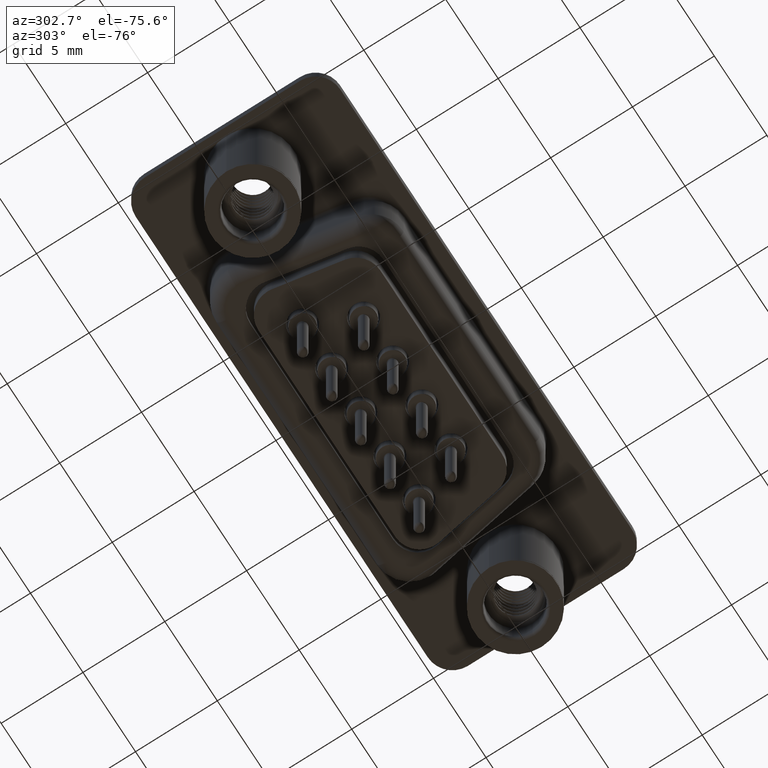
[diagram: clean part render]
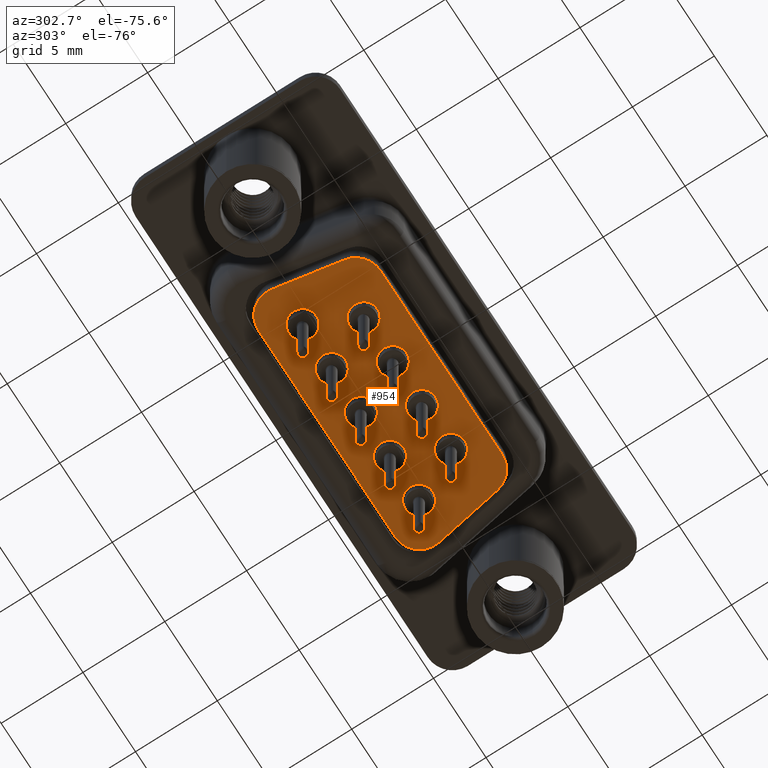
[diagram: same view with one face highlighted and labeled with its STEP entity id]
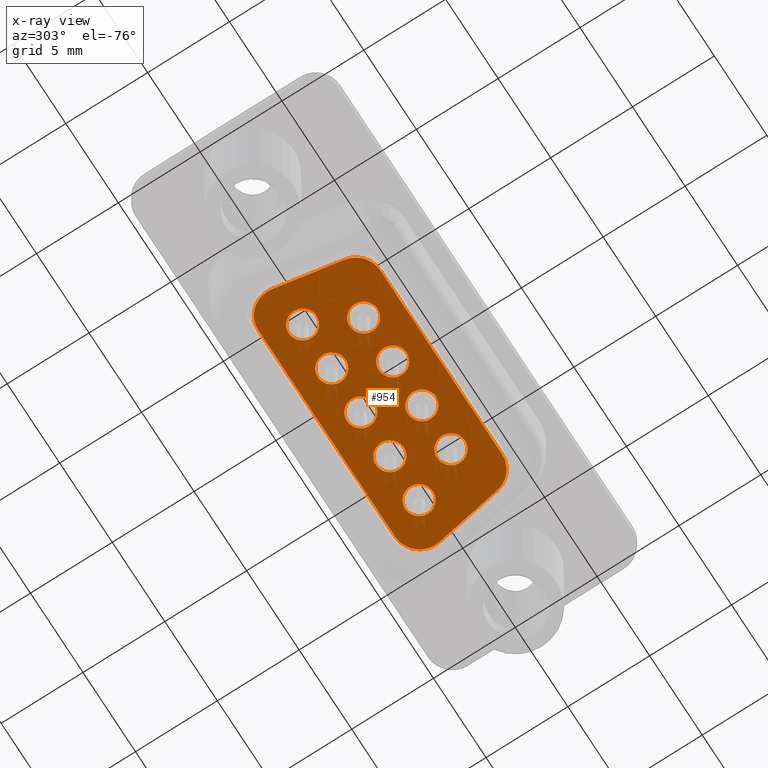
[diagram: x-ray of the same camera — body ghosted, the highlighted face saturated]
A machine part, auxiliary view. The second image highlights one B-rep face of the part: STEP entity #954.
The next image is the same camera in x-ray: the body ghosted, the highlighted face saturated — about 5% of this face is hidden behind the body in this view.
In plain terms, the highlighted planar face has unit normal (0, 0, 1).
Its self-contained STEP definition (entity closure, byte-faithful):
#44 = CARTESIAN_POINT ( 'NONE',  ( 6.960000000000000853, 1.415000000000005143, -5.500000000000000000 ) ) ;
#63 = DIRECTION ( 'NONE',  ( 1.000000000000000000, 0.0000000000000000000, 0.0000000000000000000 ) ) ;
#104 = ORIENTED_EDGE ( 'NONE', *, *, #1727, .T. ) ;
#110 = CARTESIAN_POINT ( 'NONE',  ( 13.03500000000000192, -1.424999999999994493, -5.500000000000000000 ) ) ;
#142 = CARTESIAN_POINT ( 'NONE',  ( 7.495000000000001883, -1.424999999999994493, -5.500000000000000000 ) ) ;
#145 = AXIS2_PLACEMENT_3D ( 'NONE', #12291, #7373, #1005 ) ;
#174 = DIRECTION ( 'NONE',  ( 0.0000000000000000000, -0.0000000000000000000, 1.000000000000000000 ) ) ;
#212 = DIRECTION ( 'NONE',  ( 1.000000000000000000, 0.0000000000000000000, 0.0000000000000000000 ) ) ;
#264 = CARTESIAN_POINT ( 'NONE',  ( 16.65500000000000469, -1.424999999999994493, -5.500000000000000000 ) ) ;
#330 = DIRECTION ( 'NONE',  ( 1.000000000000000000, 0.0000000000000000000, 0.0000000000000000000 ) ) ;
#367 = VECTOR ( 'NONE', #4375, 1000.000000000000000 ) ;
#443 = CARTESIAN_POINT ( 'NONE',  ( 9.730000000000000426, 1.415000000000005143, -5.500000000000000000 ) ) ;
#511 = DIRECTION ( 'NONE',  ( 1.000000000000000000, 0.0000000000000000000, 0.0000000000000000000 ) ) ;
#567 = FACE_BOUND ( 'NONE', #11710, .T. ) ;
#727 = VERTEX_POINT ( 'NONE', #3416 ) ;
#757 = EDGE_CURVE ( 'NONE', #4836, #9163, #6674, .T. ) ;
#774 = VECTOR ( 'NONE', #14288, 1000.000000000000114 ) ;
#847 = CARTESIAN_POINT ( 'NONE',  ( 5.228932785676647654, -2.260472266500395122, -5.500000000000000000 ) ) ;
#918 = DIRECTION ( 'NONE',  ( 0.0000000000000000000, -0.0000000000000000000, 1.000000000000000000 ) ) ;
#954 = ADVANCED_FACE ( 'NONE', ( #5775, #567, #10788, #6920, #5536, #7078, #4303, #9308, #3074, #3152 ), #15573, .F. ) ;
#1005 = DIRECTION ( 'NONE',  ( 1.000000000000000000, 0.0000000000000000000, 0.0000000000000000000 ) ) ;
#1137 = EDGE_CURVE ( 'NONE', #8054, #5867, #7045, .T. ) ;
#1236 = CARTESIAN_POINT ( 'NONE',  ( 13.88500000000000156, -1.424999999999994493, -5.500000000000000000 ) ) ;
#1330 = DIRECTION ( 'NONE',  ( 1.000000000000000000, 0.0000000000000000000, 0.0000000000000000000 ) ) ;
#1341 = VERTEX_POINT ( 'NONE', #10119 ) ;
#1361 = EDGE_LOOP ( 'NONE', ( #4097, #9601 ) ) ;
#1498 = DIRECTION ( 'NONE',  ( -0.1736481776669318577, -0.9848077530122076872, -0.0000000000000000000 ) ) ;
#1528 = EDGE_LOOP ( 'NONE', ( #7005, #3428 ) ) ;
#1570 = AXIS2_PLACEMENT_3D ( 'NONE', #1941, #9551, #13072 ) ;
#1618 = CARTESIAN_POINT ( 'NONE',  ( 18.99916350763890804, 3.500000000000004885, -5.500000000000000000 ) ) ;
#1668 = AXIS2_PLACEMENT_3D ( 'NONE', #4224, #12911, #9920 ) ;
#1713 = VERTEX_POINT ( 'NONE', #2308 ) ;
#1727 = EDGE_CURVE ( 'NONE', #6503, #10087, #6097, .T. ) ;
#1765 = ORIENTED_EDGE ( 'NONE', *, *, #9338, .T. ) ;
#1855 = EDGE_CURVE ( 'NONE', #7649, #9437, #11602, .T. ) ;
#1904 = DIRECTION ( 'NONE',  ( 1.000000000000000000, 0.0000000000000000000, 0.0000000000000000000 ) ) ;
#1925 = AXIS2_PLACEMENT_3D ( 'NONE', #44, #11340, #14992 ) ;
#1941 = CARTESIAN_POINT ( 'NONE',  ( 6.000836492361094621, 2.000000000000007994, -5.500000000000000000 ) ) ;
#2013 = EDGE_CURVE ( 'NONE', #15051, #1713, #10101, .T. ) ;
#2097 = CARTESIAN_POINT ( 'NONE',  ( 6.706144415194960295, -3.499999999999998224, -5.500000000000000000 ) ) ;
#2145 = CARTESIAN_POINT ( 'NONE',  ( 19.77106721432335235, -2.260472266500396898, -5.500000000000000000 ) ) ;
#2308 = CARTESIAN_POINT ( 'NONE',  ( 10.26500000000000234, -1.424999999999994493, -5.500000000000000000 ) ) ;
#2447 = VERTEX_POINT ( 'NONE', #15057 ) ;
#2556 = CARTESIAN_POINT ( 'NONE',  ( 19.77106721432335235, -2.260472266500396898, -5.500000000000000000 ) ) ;
#2682 = VERTEX_POINT ( 'NONE', #10810 ) ;
#2706 = DIRECTION ( 'NONE',  ( 0.0000000000000000000, -0.0000000000000000000, 1.000000000000000000 ) ) ;
#2914 = ORIENTED_EDGE ( 'NONE', *, *, #4069, .T. ) ;
#3072 = ORIENTED_EDGE ( 'NONE', *, *, #14605, .T. ) ;
#3074 = FACE_BOUND ( 'NONE', #13618, .T. ) ;
#3127 = AXIS2_PLACEMENT_3D ( 'NONE', #9271, #11731, #1904 ) ;
#3151 = EDGE_CURVE ( 'NONE', #5867, #8054, #16001, .T. ) ;
#3152 = FACE_OUTER_BOUND ( 'NONE', #5778, .T. ) ;
#3416 = CARTESIAN_POINT ( 'NONE',  ( 18.29385558480504415, -3.499999999999998668, -5.500000000000000000 ) ) ;
#3428 = ORIENTED_EDGE ( 'NONE', *, *, #6560, .T. ) ;
#3552 = EDGE_LOOP ( 'NONE', ( #3650, #12735 ) ) ;
#3567 = EDGE_LOOP ( 'NONE', ( #1765, #11016 ) ) ;
#3650 = ORIENTED_EDGE ( 'NONE', *, *, #9519, .T. ) ;
#3728 = DIRECTION ( 'NONE',  ( -0.0000000000000000000, 0.0000000000000000000, -1.000000000000000000 ) ) ;
#3747 = CARTESIAN_POINT ( 'NONE',  ( 15.27000000000000135, 1.415000000000005143, -5.500000000000000000 ) ) ;
#3844 = DIRECTION ( 'NONE',  ( 0.0000000000000000000, -0.0000000000000000000, 1.000000000000000000 ) ) ;
#3988 = VERTEX_POINT ( 'NONE', #11565 ) ;
#4069 = EDGE_CURVE ( 'NONE', #10087, #6503, #10375, .T. ) ;
#4097 = ORIENTED_EDGE ( 'NONE', *, *, #10361, .T. ) ;
#4184 = VECTOR ( 'NONE', #1498, 1000.000000000000114 ) ;
#4214 = CARTESIAN_POINT ( 'NONE',  ( 8.345000000000002416, -1.424999999999994493, -5.500000000000000000 ) ) ;
#4224 = CARTESIAN_POINT ( 'NONE',  ( 6.000836492361094621, 2.000000000000007994, -5.500000000000000000 ) ) ;
#4225 = CIRCLE ( 'NONE', #13382, 0.8500000000000000888 ) ;
#4303 = FACE_BOUND ( 'NONE', #14392, .T. ) ;
#4306 = EDGE_LOOP ( 'NONE', ( #11215, #3072 ) ) ;
#4375 = DIRECTION ( 'NONE',  ( -1.000000000000000000, 1.122777904919410075E-16, -0.0000000000000000000 ) ) ;
#4409 = CARTESIAN_POINT ( 'NONE',  ( 6.706144415194960295, -3.499999999999998224, -5.500000000000000000 ) ) ;
#4453 = CARTESIAN_POINT ( 'NONE',  ( 9.195000000000002061, -1.424999999999994493, -5.500000000000000000 ) ) ;
#4492 = CARTESIAN_POINT ( 'NONE',  ( 6.110000000000001208, 1.415000000000005143, -5.500000000000000000 ) ) ;
#4496 = AXIS2_PLACEMENT_3D ( 'NONE', #6702, #11714, #511 ) ;
#4834 = DIRECTION ( 'NONE',  ( 1.000000000000000000, 0.0000000000000000000, 0.0000000000000000000 ) ) ;
#4835 = AXIS2_PLACEMENT_3D ( 'NONE', #264, #3844, #14003 ) ;
#4836 = VERTEX_POINT ( 'NONE', #13563 ) ;
#4929 = EDGE_CURVE ( 'NONE', #12838, #7649, #8971, .T. ) ;
#5133 = CARTESIAN_POINT ( 'NONE',  ( 6.960000000000000853, 1.415000000000005143, -5.500000000000000000 ) ) ;
#5138 = ORIENTED_EDGE ( 'NONE', *, *, #6035, .T. ) ;
#5148 = AXIS2_PLACEMENT_3D ( 'NONE', #7963, #13874, #6418 ) ;
#5169 = DIRECTION ( 'NONE',  ( 0.0000000000000000000, 0.0000000000000000000, -1.000000000000000000 ) ) ;
#5242 = VERTEX_POINT ( 'NONE', #142 ) ;
#5260 = LINE ( 'NONE', #2556, #4184 ) ;
#5291 = ORIENTED_EDGE ( 'NONE', *, *, #7028, .T. ) ;
#5457 = ORIENTED_EDGE ( 'NONE', *, *, #4929, .T. ) ;
#5532 = CARTESIAN_POINT ( 'NONE',  ( 4.523624862842781980, 1.739527733499610429, -5.500000000000000000 ) ) ;
#5536 = FACE_BOUND ( 'NONE', #1528, .T. ) ;
#5626 = DIRECTION ( 'NONE',  ( 0.0000000000000000000, -0.0000000000000000000, 1.000000000000000000 ) ) ;
#5775 = FACE_BOUND ( 'NONE', #4306, .T. ) ;
#5778 = EDGE_LOOP ( 'NONE', ( #14032, #8803, #11717, #15275, #14786, #7123, #7437, #9638, #5457 ) ) ;
#5856 = ORIENTED_EDGE ( 'NONE', *, *, #8426, .T. ) ;
#5860 = DIRECTION ( 'NONE',  ( 0.0000000000000000000, -0.0000000000000000000, 1.000000000000000000 ) ) ;
#5867 = VERTEX_POINT ( 'NONE', #12153 ) ;
#6020 = DIRECTION ( 'NONE',  ( 1.000000000000000000, 0.0000000000000000000, 0.0000000000000000000 ) ) ;
#6035 = EDGE_CURVE ( 'NONE', #7908, #13364, #9151, .T. ) ;
#6097 = CIRCLE ( 'NONE', #12652, 0.8500000000000000888 ) ;
#6178 = EDGE_LOOP ( 'NONE', ( #2914, #104 ) ) ;
#6235 = CIRCLE ( 'NONE', #8063, 0.8500000000000000888 ) ;
#6341 = CIRCLE ( 'NONE', #10025, 0.8500000000000000888 ) ;
#6392 = CARTESIAN_POINT ( 'NONE',  ( 12.50000000000000000, 1.415000000000005143, -5.500000000000000000 ) ) ;
#6418 = DIRECTION ( 'NONE',  ( 1.000000000000000000, 0.0000000000000000000, 0.0000000000000000000 ) ) ;
#6503 = VERTEX_POINT ( 'NONE', #7706 ) ;
#6560 = EDGE_CURVE ( 'NONE', #10876, #2682, #6235, .T. ) ;
#6674 = LINE ( 'NONE', #1618, #11790 ) ;
#6702 = CARTESIAN_POINT ( 'NONE',  ( 16.65500000000000469, -1.424999999999994493, -5.500000000000000000 ) ) ;
#6817 = AXIS2_PLACEMENT_3D ( 'NONE', #9967, #3728, #8641 ) ;
#6862 = CARTESIAN_POINT ( 'NONE',  ( 4.500836492361094621, 2.000000000000007994, -5.500000000000000000 ) ) ;
#6920 = FACE_BOUND ( 'NONE', #1361, .T. ) ;
#7005 = ORIENTED_EDGE ( 'NONE', *, *, #9998, .T. ) ;
#7028 = EDGE_CURVE ( 'NONE', #13364, #7908, #11246, .T. ) ;
#7045 = CIRCLE ( 'NONE', #11267, 0.8500000000000000888 ) ;
#7078 = FACE_BOUND ( 'NONE', #3567, .T. ) ;
#7084 = CIRCLE ( 'NONE', #13890, 0.8500000000000000888 ) ;
#7123 = ORIENTED_EDGE ( 'NONE', *, *, #8875, .T. ) ;
#7168 = AXIS2_PLACEMENT_3D ( 'NONE', #11474, #2706, #7621 ) ;
#7184 = CARTESIAN_POINT ( 'NONE',  ( 14.73500000000000121, -1.424999999999994493, -5.500000000000000000 ) ) ;
#7373 = DIRECTION ( 'NONE',  ( -0.0000000000000000000, 0.0000000000000000000, -1.000000000000000000 ) ) ;
#7437 = ORIENTED_EDGE ( 'NONE', *, *, #10455, .T. ) ;
#7511 = EDGE_CURVE ( 'NONE', #13464, #15656, #15915, .T. ) ;
#7599 = CARTESIAN_POINT ( 'NONE',  ( 11.65000000000000036, 1.415000000000005143, -5.500000000000000000 ) ) ;
#7621 = DIRECTION ( 'NONE',  ( 1.000000000000000000, 0.0000000000000000000, 0.0000000000000000000 ) ) ;
#7649 = VERTEX_POINT ( 'NONE', #9922 ) ;
#7706 = CARTESIAN_POINT ( 'NONE',  ( 17.19000000000000128, 1.415000000000005143, -5.500000000000000000 ) ) ;
#7851 = EDGE_CURVE ( 'NONE', #3988, #12800, #5260, .T. ) ;
#7866 = ORIENTED_EDGE ( 'NONE', *, *, #16028, .T. ) ;
#7908 = VERTEX_POINT ( 'NONE', #110 ) ;
#7963 = CARTESIAN_POINT ( 'NONE',  ( 11.11500000000000199, -1.424999999999994493, -5.500000000000000000 ) ) ;
#7975 = DIRECTION ( 'NONE',  ( 0.0000000000000000000, -0.0000000000000000000, 1.000000000000000000 ) ) ;
#7982 = DIRECTION ( 'NONE',  ( 0.0000000000000000000, -0.0000000000000000000, 1.000000000000000000 ) ) ;
#7992 = DIRECTION ( 'NONE',  ( 1.000000000000000000, 0.0000000000000000000, 0.0000000000000000000 ) ) ;
#8054 = VERTEX_POINT ( 'NONE', #4492 ) ;
#8063 = AXIS2_PLACEMENT_3D ( 'NONE', #14968, #12535, #1330 ) ;
#8111 = AXIS2_PLACEMENT_3D ( 'NONE', #3747, #174, #330 ) ;
#8229 = CARTESIAN_POINT ( 'NONE',  ( 11.11500000000000199, -1.424999999999994493, -5.500000000000000000 ) ) ;
#8270 = DIRECTION ( 'NONE',  ( 1.000000000000000000, 0.0000000000000000000, 0.0000000000000000000 ) ) ;
#8426 = EDGE_CURVE ( 'NONE', #2447, #15980, #14654, .T. ) ;
#8485 = AXIS2_PLACEMENT_3D ( 'NONE', #10409, #5169, #15054 ) ;
#8528 = DIRECTION ( 'NONE',  ( 0.0000000000000000000, -0.0000000000000000000, 1.000000000000000000 ) ) ;
#8602 = CARTESIAN_POINT ( 'NONE',  ( 18.99916350763890804, 3.500000000000004885, -5.500000000000000000 ) ) ;
#8641 = DIRECTION ( 'NONE',  ( 1.000000000000000000, 0.0000000000000000000, 0.0000000000000000000 ) ) ;
#8701 = EDGE_CURVE ( 'NONE', #5242, #9221, #7084, .T. ) ;
#8803 = ORIENTED_EDGE ( 'NONE', *, *, #15499, .T. ) ;
#8875 = EDGE_CURVE ( 'NONE', #12800, #727, #10772, .T. ) ;
#8971 = LINE ( 'NONE', #5532, #774 ) ;
#9134 = DIRECTION ( 'NONE',  ( 1.000000000000000000, -1.334574421722017637E-16, -0.0000000000000000000 ) ) ;
#9151 = CIRCLE ( 'NONE', #15654, 0.8500000000000000888 ) ;
#9163 = VERTEX_POINT ( 'NONE', #8602 ) ;
#9221 = VERTEX_POINT ( 'NONE', #4453 ) ;
#9261 = CARTESIAN_POINT ( 'NONE',  ( 13.35000000000000142, 1.415000000000005143, -5.500000000000000000 ) ) ;
#9271 = CARTESIAN_POINT ( 'NONE',  ( 12.50000000000000000, 1.415000000000005143, -5.500000000000000000 ) ) ;
#9308 = FACE_BOUND ( 'NONE', #6178, .T. ) ;
#9338 = EDGE_CURVE ( 'NONE', #15656, #13464, #4225, .T. ) ;
#9437 = VERTEX_POINT ( 'NONE', #6862 ) ;
#9519 = EDGE_CURVE ( 'NONE', #1341, #11854, #12622, .T. ) ;
#9551 = DIRECTION ( 'NONE',  ( 0.0000000000000000000, -0.0000000000000000000, 1.000000000000000000 ) ) ;
#9599 = CARTESIAN_POINT ( 'NONE',  ( 18.03999999999999915, 1.415000000000005143, -5.500000000000000000 ) ) ;
#9601 = ORIENTED_EDGE ( 'NONE', *, *, #8701, .T. ) ;
#9638 = ORIENTED_EDGE ( 'NONE', *, *, #12944, .T. ) ;
#9920 = DIRECTION ( 'NONE',  ( 1.000000000000000000, 0.0000000000000000000, 0.0000000000000000000 ) ) ;
#9922 = CARTESIAN_POINT ( 'NONE',  ( 4.523624862842781980, 1.739527733499610429, -5.500000000000000000 ) ) ;
#9967 = CARTESIAN_POINT ( 'NONE',  ( 18.29385558480504415, -1.999999999999998224, -5.500000000000000000 ) ) ;
#9998 = EDGE_CURVE ( 'NONE', #2682, #10876, #6341, .T. ) ;
#10025 = AXIS2_PLACEMENT_3D ( 'NONE', #443, #15749, #13320 ) ;
#10087 = VERTEX_POINT ( 'NONE', #12179 ) ;
#10101 = CIRCLE ( 'NONE', #13481, 0.8500000000000000888 ) ;
#10119 = CARTESIAN_POINT ( 'NONE',  ( 17.50500000000000256, -1.424999999999994493, -5.500000000000000000 ) ) ;
#10142 = AXIS2_PLACEMENT_3D ( 'NONE', #13936, #11422, #212 ) ;
#10249 = CARTESIAN_POINT ( 'NONE',  ( 14.42000000000001769, 1.415000000000005143, -5.500000000000000000 ) ) ;
#10356 = DIRECTION ( 'NONE',  ( 0.0000000000000000000, -0.0000000000000000000, 1.000000000000000000 ) ) ;
#10361 = EDGE_CURVE ( 'NONE', #9221, #5242, #11598, .T. ) ;
#10375 = CIRCLE ( 'NONE', #10656, 0.8500000000000000888 ) ;
#10409 = CARTESIAN_POINT ( 'NONE',  ( 18.99916350763890804, 2.000000000000006217, -5.500000000000000000 ) ) ;
#10455 = EDGE_CURVE ( 'NONE', #727, #14068, #10628, .T. ) ;
#10628 = LINE ( 'NONE', #2097, #367 ) ;
#10651 = CARTESIAN_POINT ( 'NONE',  ( 15.80500000000000327, -1.424999999999994493, -5.500000000000000000 ) ) ;
#10656 = AXIS2_PLACEMENT_3D ( 'NONE', #10746, #918, #4834 ) ;
#10746 = CARTESIAN_POINT ( 'NONE',  ( 18.03999999999999915, 1.415000000000005143, -5.500000000000000000 ) ) ;
#10772 = CIRCLE ( 'NONE', #6817, 1.500000000000001332 ) ;
#10788 = FACE_BOUND ( 'NONE', #3552, .T. ) ;
#10810 = CARTESIAN_POINT ( 'NONE',  ( 10.58000000000000007, 1.415000000000005143, -5.500000000000000000 ) ) ;
#10863 = CIRCLE ( 'NONE', #4835, 0.8500000000000000888 ) ;
#10876 = VERTEX_POINT ( 'NONE', #11819 ) ;
#11016 = ORIENTED_EDGE ( 'NONE', *, *, #7511, .T. ) ;
#11215 = ORIENTED_EDGE ( 'NONE', *, *, #2013, .T. ) ;
#11246 = CIRCLE ( 'NONE', #11511, 0.8500000000000000888 ) ;
#11267 = AXIS2_PLACEMENT_3D ( 'NONE', #5133, #15329, #63 ) ;
#11340 = DIRECTION ( 'NONE',  ( 0.0000000000000000000, -0.0000000000000000000, 1.000000000000000000 ) ) ;
#11373 = CARTESIAN_POINT ( 'NONE',  ( 11.96500000000000163, -1.424999999999994493, -5.500000000000000000 ) ) ;
#11411 = DIRECTION ( 'NONE',  ( 1.000000000000000000, 0.0000000000000000000, 0.0000000000000000000 ) ) ;
#11422 = DIRECTION ( 'NONE',  ( -0.0000000000000000000, 0.0000000000000000000, -1.000000000000000000 ) ) ;
#11426 = DIRECTION ( 'NONE',  ( 1.000000000000000000, 0.0000000000000000000, 0.0000000000000000000 ) ) ;
#11474 = CARTESIAN_POINT ( 'NONE',  ( 15.27000000000000135, 1.415000000000005143, -5.500000000000000000 ) ) ;
#11511 = AXIS2_PLACEMENT_3D ( 'NONE', #1236, #7975, #12978 ) ;
#11565 = CARTESIAN_POINT ( 'NONE',  ( 20.47637513715721980, 1.739527733499609097, -5.500000000000000000 ) ) ;
#11598 = CIRCLE ( 'NONE', #15478, 0.8500000000000000888 ) ;
#11602 = CIRCLE ( 'NONE', #1668, 1.499999999999999556 ) ;
#11660 = CARTESIAN_POINT ( 'NONE',  ( 13.88500000000000156, -1.424999999999994493, -5.500000000000000000 ) ) ;
#11710 = EDGE_LOOP ( 'NONE', ( #5291, #5138 ) ) ;
#11714 = DIRECTION ( 'NONE',  ( 0.0000000000000000000, -0.0000000000000000000, 1.000000000000000000 ) ) ;
#11717 = ORIENTED_EDGE ( 'NONE', *, *, #757, .T. ) ;
#11731 = DIRECTION ( 'NONE',  ( 0.0000000000000000000, -0.0000000000000000000, 1.000000000000000000 ) ) ;
#11790 = VECTOR ( 'NONE', #9134, 1000.000000000000000 ) ;
#11819 = CARTESIAN_POINT ( 'NONE',  ( 8.880000000000000782, 1.415000000000005143, -5.500000000000000000 ) ) ;
#11854 = VERTEX_POINT ( 'NONE', #10651 ) ;
#11957 = CIRCLE ( 'NONE', #10142, 1.499999999999999556 ) ;
#12152 = CIRCLE ( 'NONE', #145, 1.500000000000001332 ) ;
#12153 = CARTESIAN_POINT ( 'NONE',  ( 7.810000000000001386, 1.415000000000005143, -5.500000000000000000 ) ) ;
#12179 = CARTESIAN_POINT ( 'NONE',  ( 18.89000000000000057, 1.415000000000005143, -5.500000000000000000 ) ) ;
#12291 = CARTESIAN_POINT ( 'NONE',  ( 6.706144415194960295, -1.999999999999997113, -5.500000000000000000 ) ) ;
#12535 = DIRECTION ( 'NONE',  ( 0.0000000000000000000, -0.0000000000000000000, 1.000000000000000000 ) ) ;
#12622 = CIRCLE ( 'NONE', #4496, 0.8500000000000000888 ) ;
#12652 = AXIS2_PLACEMENT_3D ( 'NONE', #9599, #8528, #8270 ) ;
#12726 = CIRCLE ( 'NONE', #5148, 0.8500000000000000888 ) ;
#12735 = ORIENTED_EDGE ( 'NONE', *, *, #15951, .T. ) ;
#12800 = VERTEX_POINT ( 'NONE', #2145 ) ;
#12838 = VERTEX_POINT ( 'NONE', #847 ) ;
#12911 = DIRECTION ( 'NONE',  ( -0.0000000000000000000, 0.0000000000000000000, -1.000000000000000000 ) ) ;
#12944 = EDGE_CURVE ( 'NONE', #14068, #12838, #12152, .T. ) ;
#12978 = DIRECTION ( 'NONE',  ( 1.000000000000000000, 0.0000000000000000000, 0.0000000000000000000 ) ) ;
#13072 = DIRECTION ( 'NONE',  ( 1.000000000000000000, 0.0000000000000000000, -0.0000000000000000000 ) ) ;
#13320 = DIRECTION ( 'NONE',  ( 1.000000000000000000, 0.0000000000000000000, 0.0000000000000000000 ) ) ;
#13364 = VERTEX_POINT ( 'NONE', #7184 ) ;
#13382 = AXIS2_PLACEMENT_3D ( 'NONE', #6392, #14086, #11411 ) ;
#13464 = VERTEX_POINT ( 'NONE', #7599 ) ;
#13481 = AXIS2_PLACEMENT_3D ( 'NONE', #8229, #5626, #7992 ) ;
#13557 = CARTESIAN_POINT ( 'NONE',  ( 8.345000000000002416, -1.424999999999994493, -5.500000000000000000 ) ) ;
#13563 = CARTESIAN_POINT ( 'NONE',  ( 6.000836492361093732, 3.500000000000006661, -5.500000000000000000 ) ) ;
#13618 = EDGE_LOOP ( 'NONE', ( #16048, #15135 ) ) ;
#13874 = DIRECTION ( 'NONE',  ( 0.0000000000000000000, -0.0000000000000000000, 1.000000000000000000 ) ) ;
#13890 = AXIS2_PLACEMENT_3D ( 'NONE', #13557, #5860, #6020 ) ;
#13936 = CARTESIAN_POINT ( 'NONE',  ( 6.000836492361094621, 2.000000000000007994, -5.500000000000000000 ) ) ;
#13973 = DIRECTION ( 'NONE',  ( 1.000000000000000000, 0.0000000000000000000, 0.0000000000000000000 ) ) ;
#13985 = CIRCLE ( 'NONE', #8485, 1.499999999999997780 ) ;
#14003 = DIRECTION ( 'NONE',  ( 1.000000000000000000, 0.0000000000000000000, 0.0000000000000000000 ) ) ;
#14032 = ORIENTED_EDGE ( 'NONE', *, *, #1855, .T. ) ;
#14068 = VERTEX_POINT ( 'NONE', #4409 ) ;
#14086 = DIRECTION ( 'NONE',  ( 0.0000000000000000000, -0.0000000000000000000, 1.000000000000000000 ) ) ;
#14288 = DIRECTION ( 'NONE',  ( -0.1736481776669316635, 0.9848077530122076872, -0.0000000000000000000 ) ) ;
#14392 = EDGE_LOOP ( 'NONE', ( #5856, #7866 ) ) ;
#14605 = EDGE_CURVE ( 'NONE', #1713, #15051, #12726, .T. ) ;
#14654 = CIRCLE ( 'NONE', #8111, 0.8499999999999844347 ) ;
#14786 = ORIENTED_EDGE ( 'NONE', *, *, #7851, .T. ) ;
#14968 = CARTESIAN_POINT ( 'NONE',  ( 9.730000000000000426, 1.415000000000005143, -5.500000000000000000 ) ) ;
#14992 = DIRECTION ( 'NONE',  ( 1.000000000000000000, 0.0000000000000000000, 0.0000000000000000000 ) ) ;
#15051 = VERTEX_POINT ( 'NONE', #11373 ) ;
#15054 = DIRECTION ( 'NONE',  ( -1.000000000000000000, 0.0000000000000000000, 0.0000000000000000000 ) ) ;
#15057 = CARTESIAN_POINT ( 'NONE',  ( 16.11999999999998678, 1.415000000000005143, -5.500000000000000000 ) ) ;
#15135 = ORIENTED_EDGE ( 'NONE', *, *, #1137, .T. ) ;
#15275 = ORIENTED_EDGE ( 'NONE', *, *, #15984, .T. ) ;
#15329 = DIRECTION ( 'NONE',  ( 0.0000000000000000000, -0.0000000000000000000, 1.000000000000000000 ) ) ;
#15478 = AXIS2_PLACEMENT_3D ( 'NONE', #4214, #7982, #13973 ) ;
#15499 = EDGE_CURVE ( 'NONE', #9437, #4836, #11957, .T. ) ;
#15573 = PLANE ( 'NONE',  #1570 ) ;
#15654 = AXIS2_PLACEMENT_3D ( 'NONE', #11660, #10356, #11426 ) ;
#15656 = VERTEX_POINT ( 'NONE', #9261 ) ;
#15749 = DIRECTION ( 'NONE',  ( 0.0000000000000000000, -0.0000000000000000000, 1.000000000000000000 ) ) ;
#15788 = CIRCLE ( 'NONE', #7168, 0.8499999999999844347 ) ;
#15915 = CIRCLE ( 'NONE', #3127, 0.8500000000000000888 ) ;
#15951 = EDGE_CURVE ( 'NONE', #11854, #1341, #10863, .T. ) ;
#15980 = VERTEX_POINT ( 'NONE', #10249 ) ;
#15984 = EDGE_CURVE ( 'NONE', #9163, #3988, #13985, .T. ) ;
#16001 = CIRCLE ( 'NONE', #1925, 0.8500000000000000888 ) ;
#16028 = EDGE_CURVE ( 'NONE', #15980, #2447, #15788, .T. ) ;
#16048 = ORIENTED_EDGE ( 'NONE', *, *, #3151, .T. ) ;